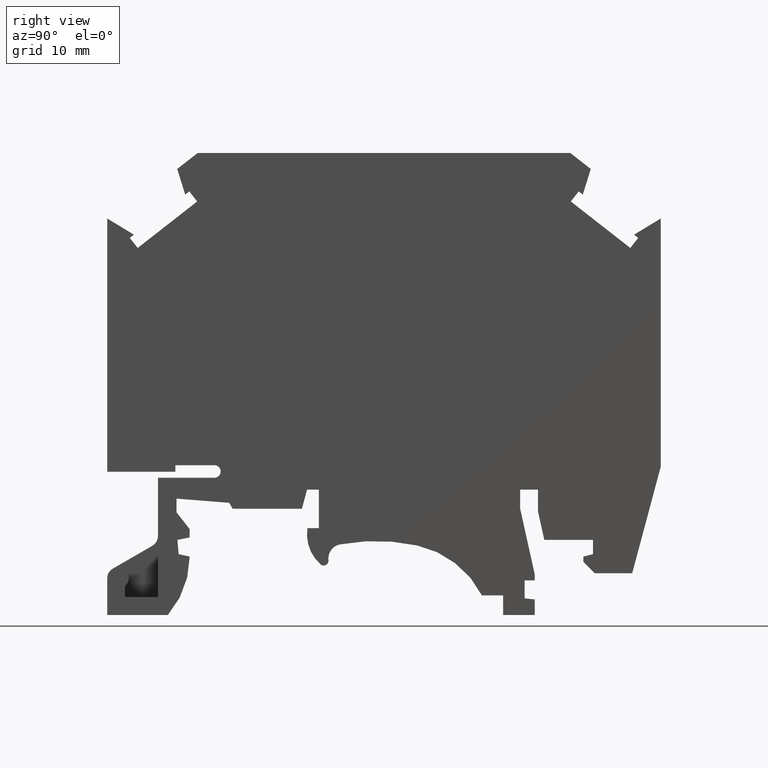
[diagram: clean part render]
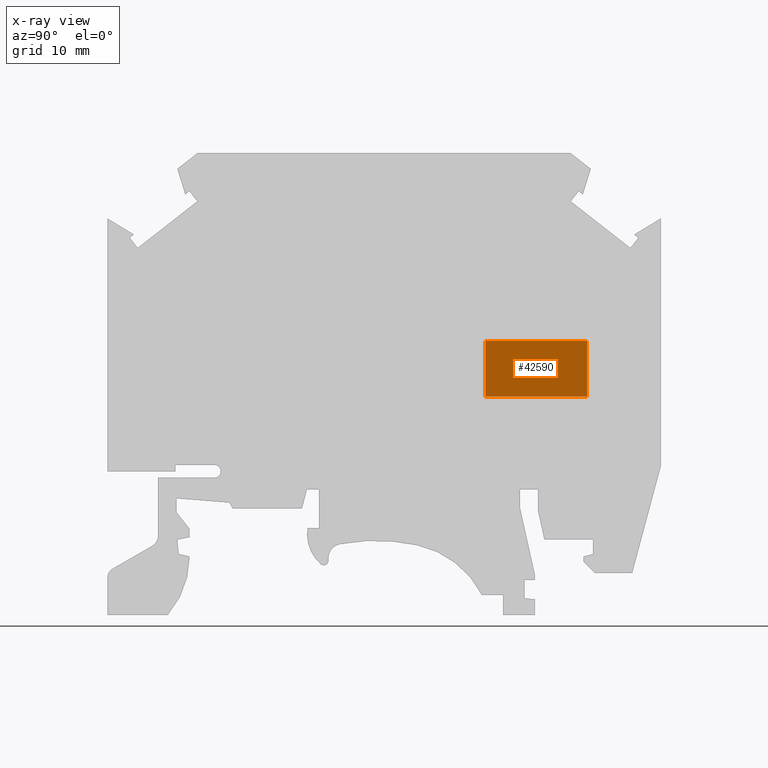
[diagram: x-ray — body ghosted, one internal face saturated and labeled with its STEP entity id]
A machine part, right view, then the same camera in x-ray: the body is ghosted and one INTERNAL B-rep face — a face not visible from any outside direction — is saturated and labeled: STEP entity #42590.
In plain terms, the highlighted planar face has unit normal (1, -0, 0).
Its self-contained STEP definition (entity closure, byte-faithful):
#40160=CARTESIAN_POINT('',(-4.67709853380776,27.1795237515583,6.9));
#40170=VERTEX_POINT('',#40160);
#40550=CARTESIAN_POINT('',(-13.2020985338077,27.1795237515583,
6.90000000000017));
#40560=VERTEX_POINT('',#40550);
#40590=CARTESIAN_POINT('',(-13.2020985338077,9.53385075155829,
6.90000000000017));
#40600=DIRECTION('',(0.,1.,0.));
#40610=VECTOR('',#40600,1.);
#40620=LINE('',#40590,#40610);
#40630=CARTESIAN_POINT('',(-13.2020985338077,22.5295237515583,
6.90000000000017));
#40640=VERTEX_POINT('',#40630);
#40650=EDGE_CURVE('',#40640,#40560,#40620,.T.);
#41840=CARTESIAN_POINT('',(-4.67709853380776,22.5295237515583,6.9));
#41850=VERTEX_POINT('',#41840);
#42190=CARTESIAN_POINT('',(13.4527094661923,27.1795237515583,6.9));
#42200=DIRECTION('',(-1.,0.,0.));
#42210=VECTOR('',#42200,1.);
#42220=LINE('',#42190,#42210);
#42230=EDGE_CURVE('',#40170,#40560,#42220,.T.);
#42380=CARTESIAN_POINT('',(1.4979014661923,27.1795237515583,6.9));
#42390=DIRECTION('',(0.,-0.,1.));
#42400=DIRECTION('',(0.,1.,0.));
#42410=AXIS2_PLACEMENT_3D('',#42380,#42390,#42400);
#42420=PLANE('',#42410);
#42430=CARTESIAN_POINT('',(-4.67709853380776,9.53385075155829,6.9));
#42440=DIRECTION('',(0.,-1.,0.));
#42450=VECTOR('',#42440,1.);
#42460=LINE('',#42430,#42450);
#42470=EDGE_CURVE('',#40170,#41850,#42460,.T.);
#42480=ORIENTED_EDGE('',*,*,#42470,.F.);
#42490=CARTESIAN_POINT('',(13.4527094661923,22.5295237515583,6.9));
#42500=DIRECTION('',(-1.,0.,0.));
#42510=VECTOR('',#42500,1.);
#42520=LINE('',#42490,#42510);
#42530=EDGE_CURVE('',#41850,#40640,#42520,.T.);
#42540=ORIENTED_EDGE('',*,*,#42530,.F.);
#42550=ORIENTED_EDGE('',*,*,#40650,.F.);
#42560=ORIENTED_EDGE('',*,*,#42230,.T.);
#42570=EDGE_LOOP('',(#42560,#42550,#42540,#42480));
#42580=FACE_OUTER_BOUND('',#42570,.T.);
#42590=ADVANCED_FACE('',(#42580),#42420,.T.);